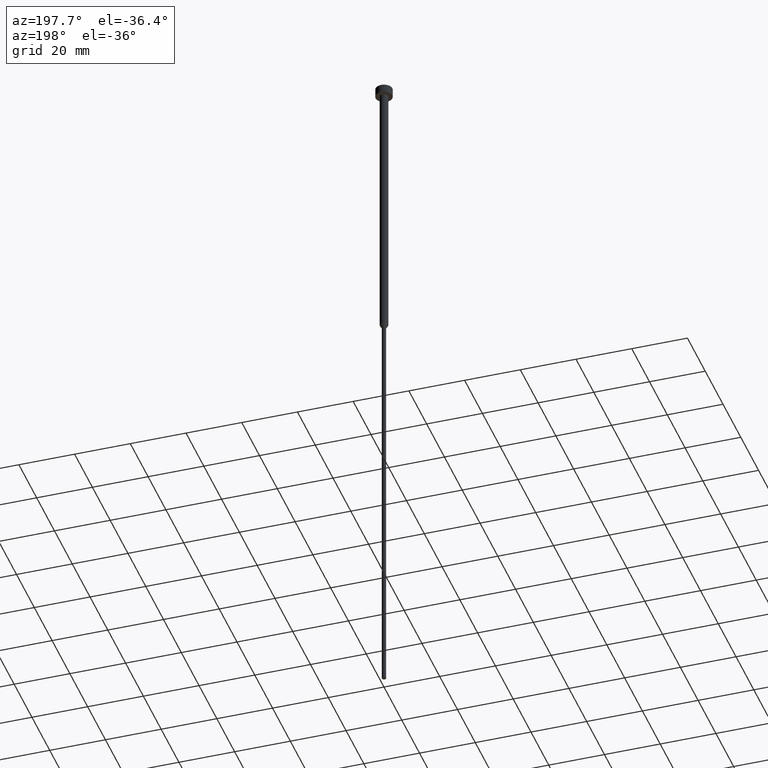
[diagram: clean part render]
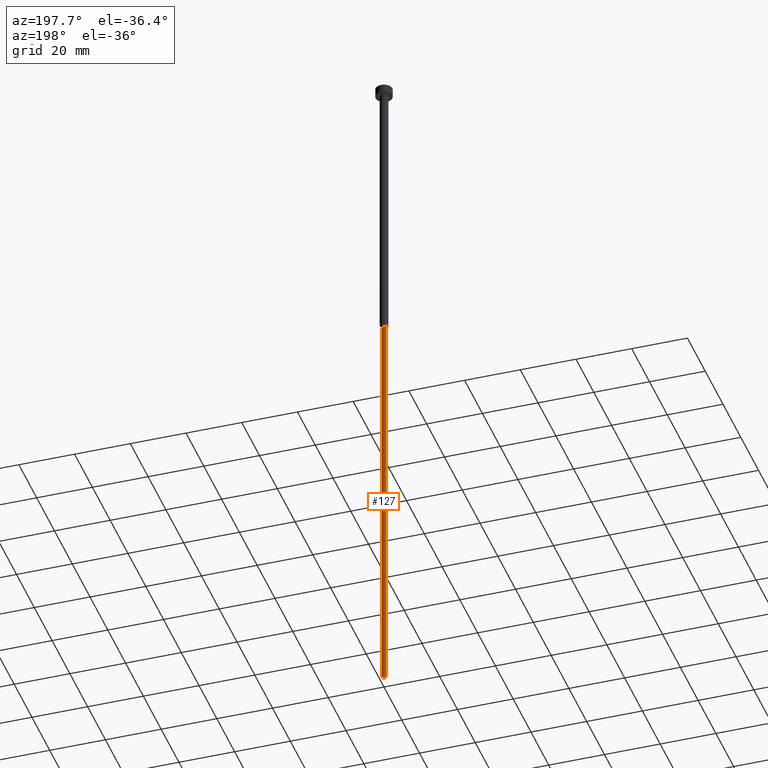
[diagram: same view with one face highlighted and labeled with its STEP entity id]
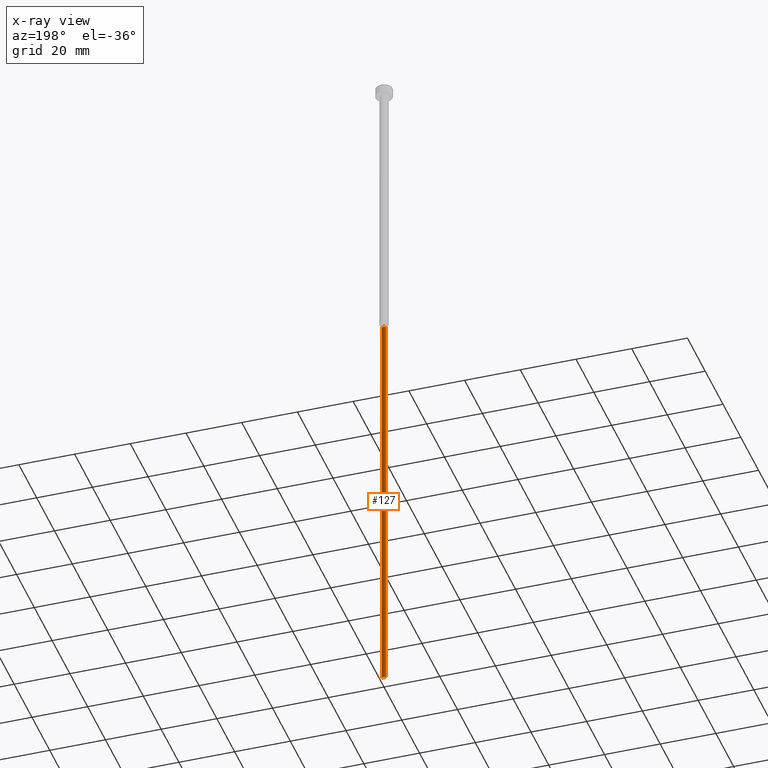
[diagram: x-ray of the same camera — body ghosted, the highlighted face saturated]
A machine part, auxiliary view. The second image highlights one B-rep face of the part: STEP entity #127.
The next image is the same camera in x-ray: the body ghosted, the highlighted face saturated — about 0% of this face is hidden behind the body in this view.
In plain terms, the highlighted cylindrical surface (edge-blend (fillet) strip) has radius 0.75 mm, axis along (-0, -0, 1).
Its self-contained STEP definition (entity closure, byte-faithful):
#2 = EDGE_CURVE ( 'NONE', #320, #339, #240, .T. ) ;
#7 = ORIENTED_EDGE ( 'NONE', *, *, #178, .F. ) ;
#8 = EDGE_CURVE ( 'NONE', #320, #56, #161, .T. ) ;
#23 = DIRECTION ( 'NONE',  ( -0.000000000000000000, -0.000000000000000000, 1.000000000000000000 ) ) ;
#38 = DIRECTION ( 'NONE',  ( 1.000000000000000000, 0.000000000000000000, 0.000000000000000000 ) ) ;
#45 = DIRECTION ( 'NONE',  ( 1.000000000000000000, 0.000000000000000000, 0.000000000000000000 ) ) ;
#56 = VERTEX_POINT ( 'NONE', #69 ) ;
#66 = EDGE_CURVE ( 'NONE', #56, #122, #126, .T. ) ;
#69 = CARTESIAN_POINT ( 'NONE',  ( -0.7500000000000000000, 9.184850993605149670E-17, -250.0000000000000000 ) ) ;
#82 = CARTESIAN_POINT ( 'NONE',  ( 0.000000000000000000, 0.000000000000000000, -101.2990381056766438 ) ) ;
#116 = CIRCLE ( 'NONE', #167, 0.7500000000000000000 ) ;
#122 = VERTEX_POINT ( 'NONE', #216 ) ;
#126 = LINE ( 'NONE', #181, #201 ) ;
#127 = ADVANCED_FACE ( 'NONE', ( #218 ), #194, .T. ) ;
#128 = ORIENTED_EDGE ( 'NONE', *, *, #8, .T. ) ;
#129 = AXIS2_PLACEMENT_3D ( 'NONE', #345, #185, #38 ) ;
#140 = CARTESIAN_POINT ( 'NONE',  ( 0.000000000000000000, 0.000000000000000000, 0.000000000000000000 ) ) ;
#161 = CIRCLE ( 'NONE', #129, 0.7500000000000000000 ) ;
#167 = AXIS2_PLACEMENT_3D ( 'NONE', #82, #23, #45 ) ;
#173 = CARTESIAN_POINT ( 'NONE',  ( 0.7500000000000000000, 0.000000000000000000, -250.0000000000000000 ) ) ;
#174 = VECTOR ( 'NONE', #184, 1000.000000000000000 ) ;
#178 = EDGE_CURVE ( 'NONE', #339, #122, #116, .T. ) ;
#181 = CARTESIAN_POINT ( 'NONE',  ( -0.7500000000000000000, 9.184850993605149670E-17, 0.000000000000000000 ) ) ;
#184 = DIRECTION ( 'NONE',  ( -0.000000000000000000, -0.000000000000000000, 1.000000000000000000 ) ) ;
#185 = DIRECTION ( 'NONE',  ( -0.000000000000000000, -0.000000000000000000, 1.000000000000000000 ) ) ;
#186 = ORIENTED_EDGE ( 'NONE', *, *, #2, .F. ) ;
#194 = CYLINDRICAL_SURFACE ( 'NONE', #285, 0.7500000000000000000 ) ;
#200 = CARTESIAN_POINT ( 'NONE',  ( 0.7500000000000000000, 0.000000000000000000, -101.2990381056766438 ) ) ;
#201 = VECTOR ( 'NONE', #237, 1000.000000000000000 ) ;
#216 = CARTESIAN_POINT ( 'NONE',  ( -0.7500000000000000000, 9.184850993605149670E-17, -101.2990381056766438 ) ) ;
#218 = FACE_OUTER_BOUND ( 'NONE', #313, .T. ) ;
#228 = ORIENTED_EDGE ( 'NONE', *, *, #66, .T. ) ;
#237 = DIRECTION ( 'NONE',  ( -0.000000000000000000, -0.000000000000000000, 1.000000000000000000 ) ) ;
#240 = LINE ( 'NONE', #348, #174 ) ;
#243 = DIRECTION ( 'NONE',  ( 1.000000000000000000, 0.000000000000000000, 0.000000000000000000 ) ) ;
#273 = DIRECTION ( 'NONE',  ( -0.000000000000000000, -0.000000000000000000, 1.000000000000000000 ) ) ;
#285 = AXIS2_PLACEMENT_3D ( 'NONE', #140, #273, #243 ) ;
#313 = EDGE_LOOP ( 'NONE', ( #128, #228, #7, #186 ) ) ;
#320 = VERTEX_POINT ( 'NONE', #173 ) ;
#339 = VERTEX_POINT ( 'NONE', #200 ) ;
#345 = CARTESIAN_POINT ( 'NONE',  ( 0.000000000000000000, 0.000000000000000000, -250.0000000000000000 ) ) ;
#348 = CARTESIAN_POINT ( 'NONE',  ( 0.7500000000000000000, 0.000000000000000000, 0.000000000000000000 ) ) ;